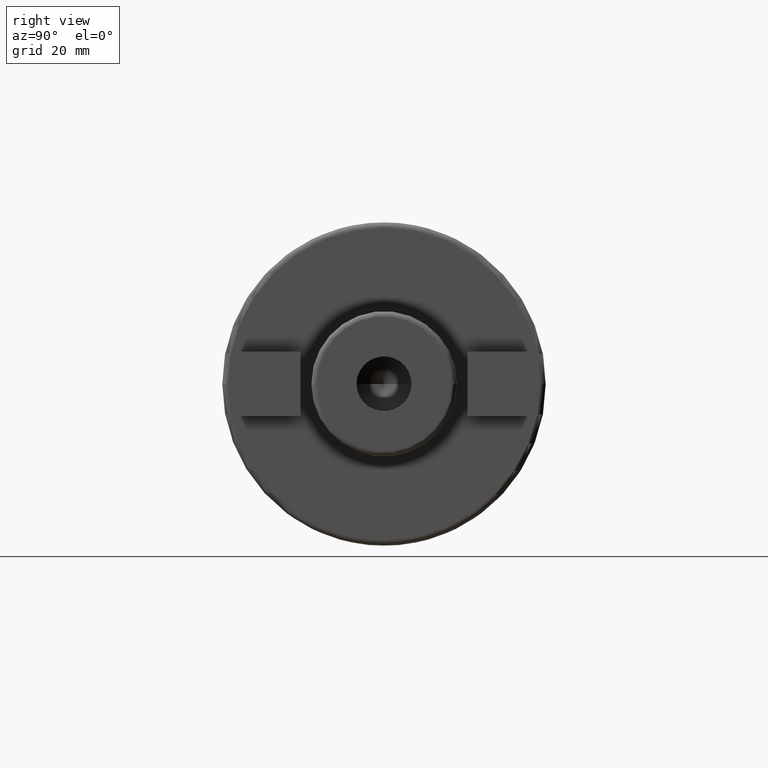
[diagram: clean part render]
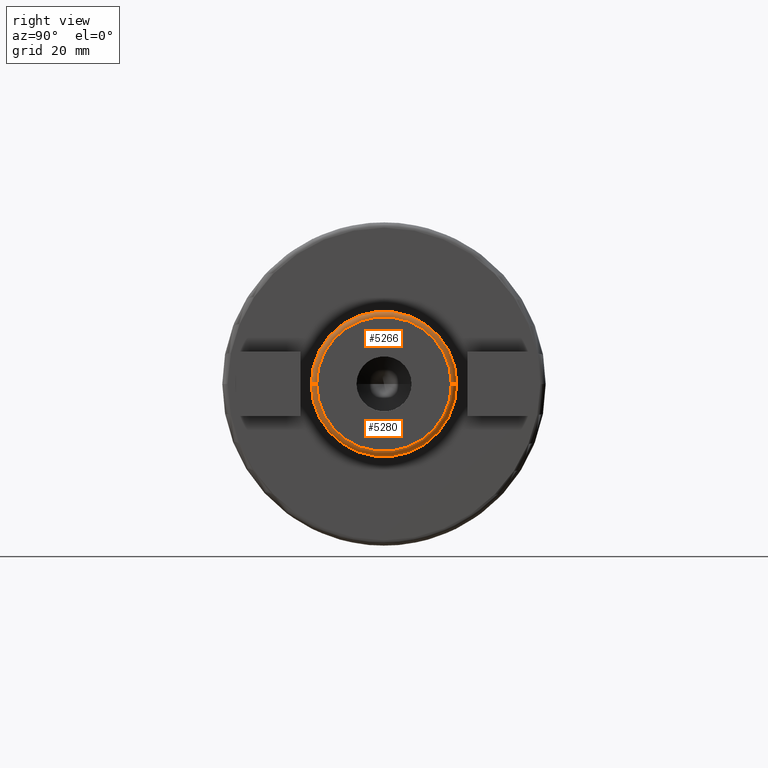
[diagram: same view with one multi-face feature highlighted, each face labeled with its STEP entity id]
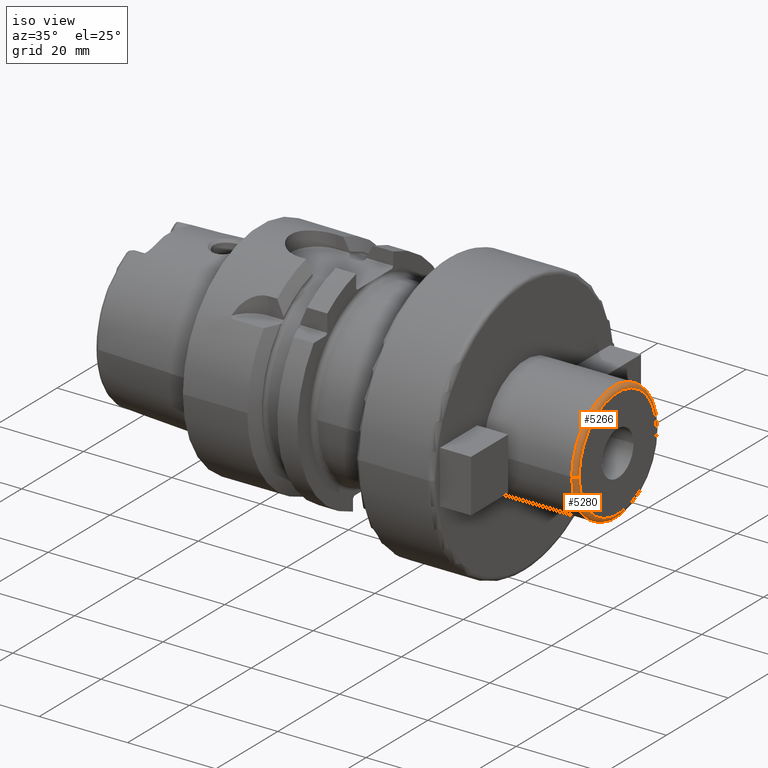
[diagram: same view with one multi-face feature highlighted, each face labeled with its STEP entity id]
A machine part, right view. The highlighted faces form ONE feature: a constant-radius fillet chain: 2 tangent blend faces with common blend radius 1 mm. The faces share edges in the B-rep.
A second angle (iso view) of the same feature is appended — it is thin or edge-on in the first view.
Their STEP definitions:
[1] entity #5266 (Torus):
#1711=CARTESIAN_POINT('',(8.E1,0.E0,0.E0));
#1712=DIRECTION('',(-1.E0,0.E0,0.E0));
#1713=DIRECTION('',(0.E0,-1.E0,0.E0));
#1714=AXIS2_PLACEMENT_3D('',#1711,#1712,#1713);
#1716=CARTESIAN_POINT('',(8.E1,-1.25E1,-1.270324123670E-11));
#1717=DIRECTION('',(0.E0,-1.016259992825E-12,1.E0));
#1718=DIRECTION('',(0.E0,-1.E0,-1.016259992825E-12));
#1719=AXIS2_PLACEMENT_3D('',#1716,#1717,#1718);
#1721=CARTESIAN_POINT('',(8.E1,1.25E1,1.270246408058E-11));
#1722=DIRECTION('',(0.E0,1.016197542780E-12,-1.E0));
#1723=DIRECTION('',(0.E0,1.E0,1.016197542780E-12));
#1724=AXIS2_PLACEMENT_3D('',#1721,#1722,#1723);
#1744=CARTESIAN_POINT('',(8.1E1,0.E0,0.E0));
#1745=DIRECTION('',(-1.E0,0.E0,0.E0));
#1746=DIRECTION('',(0.E0,-1.E0,0.E0));
#1747=AXIS2_PLACEMENT_3D('',#1744,#1745,#1746);
#3431=CARTESIAN_POINT('',(8.E1,1.35E1,0.E0));
#3432=CARTESIAN_POINT('',(8.E1,-1.35E1,0.E0));
#3433=VERTEX_POINT('',#3431);
#3434=VERTEX_POINT('',#3432);
#3435=CARTESIAN_POINT('',(8.1E1,1.25E1,0.E0));
#3436=CARTESIAN_POINT('',(8.1E1,-1.25E1,0.E0));
#3437=VERTEX_POINT('',#3435);
#3438=VERTEX_POINT('',#3436);
#5252=CARTESIAN_POINT('',(8.E1,0.E0,0.E0));
#5253=DIRECTION('',(1.E0,0.E0,0.E0));
#5254=DIRECTION('',(0.E0,-9.999850067495E-1,-5.475972632293E-3));
#5255=AXIS2_PLACEMENT_3D('',#5252,#5253,#5254);
#5256=TOROIDAL_SURFACE('',#5255,1.25E1,1.E0);
#5257=ORIENTED_EDGE('',*,*,#5242,.T.);
#5259=ORIENTED_EDGE('',*,*,#5258,.T.);
#5261=ORIENTED_EDGE('',*,*,#5260,.F.);
#5263=ORIENTED_EDGE('',*,*,#5262,.F.);
#5264=EDGE_LOOP('',(#5257,#5259,#5261,#5263));
#5265=FACE_OUTER_BOUND('',#5264,.F.);
#5266=ADVANCED_FACE('',(#5265),#5256,.T.);
#1715=CIRCLE('',#1714,1.35E1);
#1720=CIRCLE('',#1719,1.E0);
#1725=CIRCLE('',#1724,1.E0);
#1748=CIRCLE('',#1747,1.25E1);
#5242=EDGE_CURVE('',#3434,#3433,#1715,.T.);
#5258=EDGE_CURVE('',#3433,#3437,#1725,.T.);
#5260=EDGE_CURVE('',#3438,#3437,#1748,.T.);
#5262=EDGE_CURVE('',#3434,#3438,#1720,.T.);
[2] entity #5280 (Torus):
#1716=CARTESIAN_POINT('',(8.E1,-1.25E1,-1.270324123670E-11));
#1717=DIRECTION('',(0.E0,-1.016259992825E-12,1.E0));
#1718=DIRECTION('',(0.E0,-1.E0,-1.016259992825E-12));
#1719=AXIS2_PLACEMENT_3D('',#1716,#1717,#1718);
#1721=CARTESIAN_POINT('',(8.E1,1.25E1,1.270246408058E-11));
#1722=DIRECTION('',(0.E0,1.016197542780E-12,-1.E0));
#1723=DIRECTION('',(0.E0,1.E0,1.016197542780E-12));
#1724=AXIS2_PLACEMENT_3D('',#1721,#1722,#1723);
#1726=CARTESIAN_POINT('',(8.E1,0.E0,0.E0));
#1727=DIRECTION('',(-1.E0,0.E0,0.E0));
#1728=DIRECTION('',(0.E0,1.E0,0.E0));
#1729=AXIS2_PLACEMENT_3D('',#1726,#1727,#1728);
#1739=CARTESIAN_POINT('',(8.1E1,0.E0,0.E0));
#1740=DIRECTION('',(-1.E0,0.E0,0.E0));
#1741=DIRECTION('',(0.E0,1.E0,0.E0));
#1742=AXIS2_PLACEMENT_3D('',#1739,#1740,#1741);
#3431=CARTESIAN_POINT('',(8.E1,1.35E1,0.E0));
#3432=CARTESIAN_POINT('',(8.E1,-1.35E1,0.E0));
#3433=VERTEX_POINT('',#3431);
#3434=VERTEX_POINT('',#3432);
#3435=CARTESIAN_POINT('',(8.1E1,1.25E1,0.E0));
#3436=CARTESIAN_POINT('',(8.1E1,-1.25E1,0.E0));
#3437=VERTEX_POINT('',#3435);
#3438=VERTEX_POINT('',#3436);
#5267=CARTESIAN_POINT('',(8.E1,0.E0,0.E0));
#5268=DIRECTION('',(1.E0,0.E0,0.E0));
#5269=DIRECTION('',(0.E0,9.999850067495E-1,5.475972632293E-3));
#5270=AXIS2_PLACEMENT_3D('',#5267,#5268,#5269);
#5271=TOROIDAL_SURFACE('',#5270,1.25E1,1.E0);
#5273=ORIENTED_EDGE('',*,*,#5272,.T.);
#5274=ORIENTED_EDGE('',*,*,#5262,.T.);
#5276=ORIENTED_EDGE('',*,*,#5275,.F.);
#5277=ORIENTED_EDGE('',*,*,#5258,.F.);
#5278=EDGE_LOOP('',(#5273,#5274,#5276,#5277));
#5279=FACE_OUTER_BOUND('',#5278,.F.);
#5280=ADVANCED_FACE('',(#5279),#5271,.T.);
#1720=CIRCLE('',#1719,1.E0);
#1725=CIRCLE('',#1724,1.E0);
#1730=CIRCLE('',#1729,1.35E1);
#1743=CIRCLE('',#1742,1.25E1);
#5258=EDGE_CURVE('',#3433,#3437,#1725,.T.);
#5262=EDGE_CURVE('',#3434,#3438,#1720,.T.);
#5272=EDGE_CURVE('',#3433,#3434,#1730,.T.);
#5275=EDGE_CURVE('',#3437,#3438,#1743,.T.);